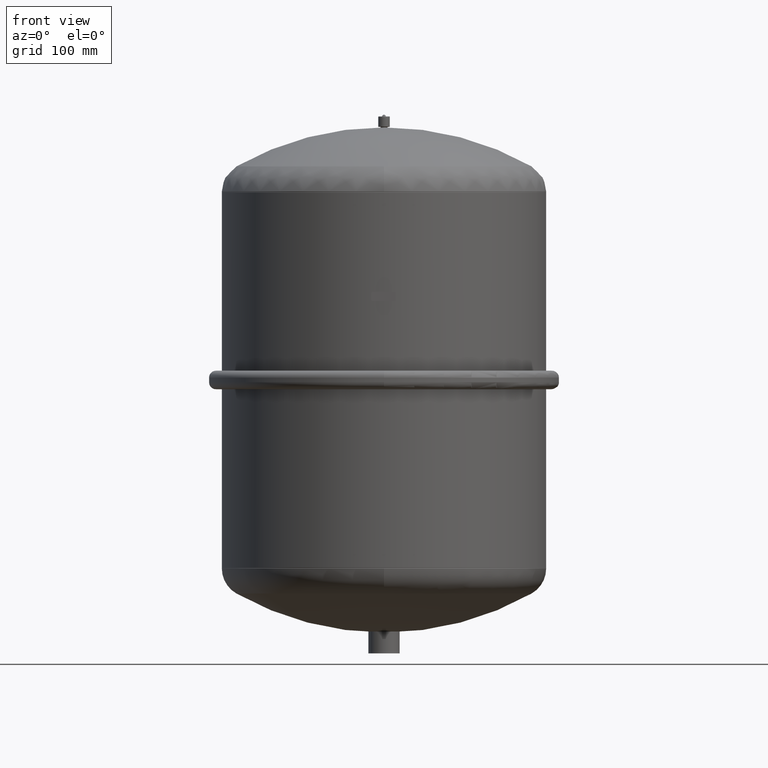
[diagram: clean part render]
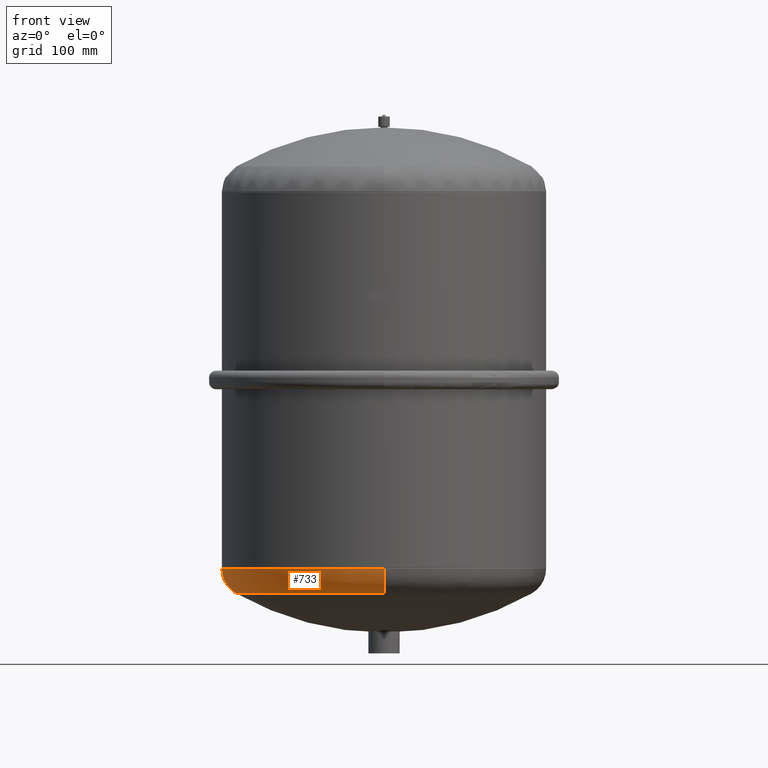
[diagram: same view with one face highlighted and labeled with its STEP entity id]
A machine part, front view. The second image highlights one B-rep face of the part: STEP entity #733.
In plain terms, the highlighted toroidal blend (fillet) surface has major radius 115 mm and minor (blend) radius 25 mm.
Its self-contained STEP definition (entity closure, byte-faithful):
#638=CARTESIAN_POINT('',(-139.99999999999997,1.180331E-016,73.357457576154587));
#639=VERTEX_POINT('',#638);
#663=CARTESIAN_POINT('',(-9.759320E-015,140.0,73.357457576154587));
#664=VERTEX_POINT('',#663);
#672=CARTESIAN_POINT('',(-1.190815E-016,1.180331E-016,73.357457576154559));
#673=DIRECTION('',(0.0,0.0,1.0));
#674=DIRECTION('',(-1.0,0.0,0.0));
#675=AXIS2_PLACEMENT_3D('',#672,#673,#674);
#676=CIRCLE('',#675,140.0);
#677=EDGE_CURVE('',#664,#639,#676,.T.);
#682=CARTESIAN_POINT('',(7.385169E-015,1.180331E-016,73.357457576154587));
#683=DIRECTION('',(1.853286E-016,-1.836970E-016,1.0));
#684=DIRECTION('',(0.0,-1.0,0.0));
#685=AXIS2_PLACEMENT_3D('',#682,#683,#684);
#686=TOROIDAL_SURFACE('',#685,115.00000000000001,25.0);
#687=CARTESIAN_POINT('',(7.385169E-015,-140.0,73.35745757615453));
#688=VERTEX_POINT('',#687);
#689=CARTESIAN_POINT('',(3.355614E-015,-127.33905579399143,51.614695513510156));
#690=VERTEX_POINT('',#689);
#691=CARTESIAN_POINT('',(7.385169E-015,-115.00000000000001,73.357457576154559));
#692=DIRECTION('',(1.0,0.0,0.0));
#693=DIRECTION('',(0.0,-1.0,0.0));
#694=AXIS2_PLACEMENT_3D('',#691,#692,#693);
#695=CIRCLE('',#694,25.0);
#696=EDGE_CURVE('',#688,#690,#695,.T.);
#697=ORIENTED_EDGE('',*,*,#696,.F.);
#698=CARTESIAN_POINT('',(-1.190815E-016,1.180331E-016,73.357457576154559));
#699=DIRECTION('',(0.0,0.0,1.0));
#700=DIRECTION('',(-1.0,0.0,0.0));
#701=AXIS2_PLACEMENT_3D('',#698,#699,#700);
#702=CIRCLE('',#701,140.0);
#703=EDGE_CURVE('',#639,#688,#702,.T.);
#704=ORIENTED_EDGE('',*,*,#703,.F.);
#705=ORIENTED_EDGE('',*,*,#677,.F.);
#706=CARTESIAN_POINT('',(-1.223841E-014,127.33905579399143,51.614695513510206));
#707=VERTEX_POINT('',#706);
#708=CARTESIAN_POINT('',(-6.697804E-015,115.00000000000001,73.357457576154616));
#709=DIRECTION('',(-1.0,0.0,0.0));
#710=DIRECTION('',(0.0,1.0,0.0));
#711=AXIS2_PLACEMENT_3D('',#708,#709,#710);
#712=CIRCLE('',#711,25.0);
#713=EDGE_CURVE('',#664,#707,#712,.T.);
#714=ORIENTED_EDGE('',*,*,#713,.T.);
#715=CARTESIAN_POINT('',(-127.33905579399145,4.112114E-015,51.614695513510199));
#716=VERTEX_POINT('',#715);
#717=CARTESIAN_POINT('',(-4.148636E-015,4.112114E-015,51.614695513510178));
#718=DIRECTION('',(0.0,0.0,1.0));
#719=DIRECTION('',(-1.0,0.0,0.0));
#720=AXIS2_PLACEMENT_3D('',#717,#718,#719);
#721=CIRCLE('',#720,127.33905579399143);
#722=EDGE_CURVE('',#707,#716,#721,.T.);
#723=ORIENTED_EDGE('',*,*,#722,.T.);
#724=CARTESIAN_POINT('',(-4.148636E-015,4.112114E-015,51.614695513510178));
#725=DIRECTION('',(0.0,0.0,1.0));
#726=DIRECTION('',(-1.0,0.0,0.0));
#727=AXIS2_PLACEMENT_3D('',#724,#725,#726);
#728=CIRCLE('',#727,127.33905579399143);
#729=EDGE_CURVE('',#716,#690,#728,.T.);
#730=ORIENTED_EDGE('',*,*,#729,.T.);
#731=EDGE_LOOP('',(#697,#704,#705,#714,#723,#730));
#732=FACE_OUTER_BOUND('',#731,.T.);
#733=ADVANCED_FACE('',(#732),#686,.T.);